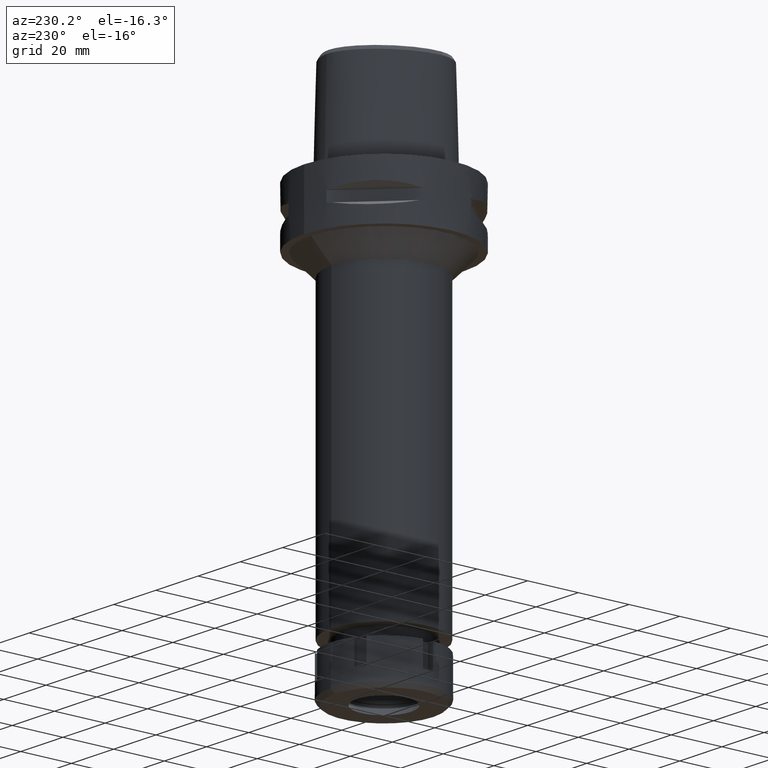
[diagram: clean part render]
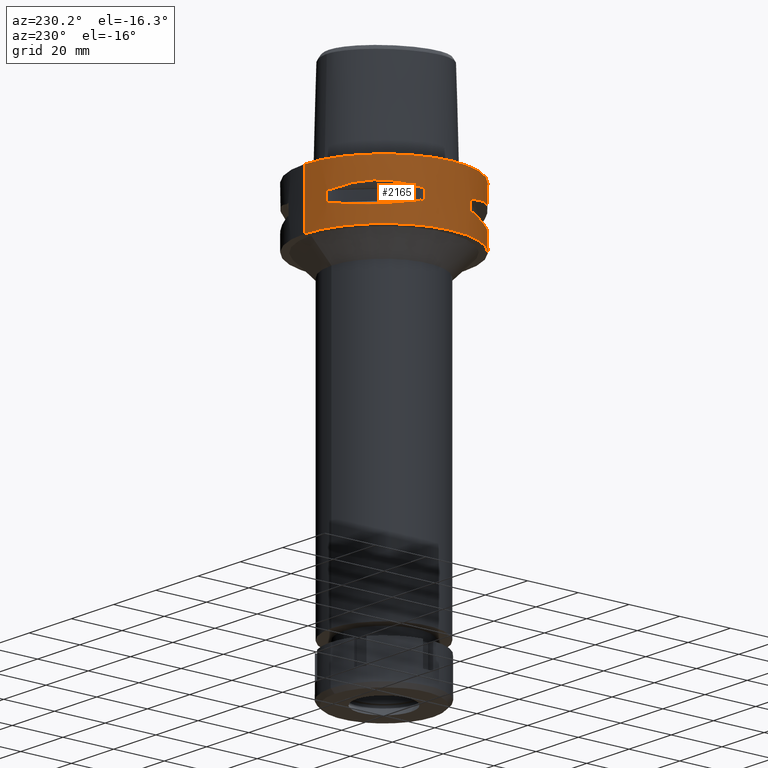
[diagram: same view with one face highlighted and labeled with its STEP entity id]
A machine part, auxiliary view. The second image highlights one B-rep face of the part: STEP entity #2165.
In plain terms, the highlighted cylindrical surface (partial cylindrical patch) has radius 31.5 mm, axis along (0, 0, -1).
Its self-contained STEP definition (entity closure, byte-faithful):
#11 = CARTESIAN_POINT ( 'NONE',  ( 0.0000000000000000000, 1.320781572880000066E-14, -22.00000000000000000 ) ) ;
#15 = DIRECTION ( 'NONE',  ( 0.0000000000000000000, 0.0000000000000000000, -1.000000000000000000 ) ) ;
#63 = EDGE_CURVE ( 'NONE', #4992, #2231, #303, .T. ) ;
#75 = CARTESIAN_POINT ( 'NONE',  ( -14.84422749186513713, 27.88214534477230444, -8.906206096533262340 ) ) ;
#105 = CARTESIAN_POINT ( 'NONE',  ( 0.0000000000000000000, 1.320781572880000066E-14, 7.849999999999999645 ) ) ;
#154 = DIRECTION ( 'NONE',  ( 0.0000000000000000000, 0.0000000000000000000, 1.000000000000000000 ) ) ;
#197 = AXIS2_PLACEMENT_3D ( 'NONE', #2207, #4275, #3935 ) ;
#200 = CIRCLE ( 'NONE', #5432, 31.50000000000000711 ) ;
#219 = LINE ( 'NONE', #3627, #4082 ) ;
#256 = ORIENTED_EDGE ( 'NONE', *, *, #737, .F. ) ;
#303 = LINE ( 'NONE', #2022, #4029 ) ;
#346 = DIRECTION ( 'NONE',  ( 0.0000000000000000000, 0.0000000000000000000, 1.000000000000000000 ) ) ;
#395 = CARTESIAN_POINT ( 'NONE',  ( -30.19251670572000279, -8.981198972017999438, -14.05000000000000071 ) ) ;
#446 = CARTESIAN_POINT ( 'NONE',  ( -12.70097436174568983, -28.92472615208535558, -9.353533115229671679 ) ) ;
#452 = CARTESIAN_POINT ( 'NONE',  ( -26.84474411198783628, -16.48208282228858224, -15.34094883777952667 ) ) ;
#481 = CARTESIAN_POINT ( 'NONE',  ( -14.89252659053665440, -27.86285265927818600, -15.10765629750852135 ) ) ;
#514 = CARTESIAN_POINT ( 'NONE',  ( -8.981198972017999438, 30.19251670572000279, -14.05000000000000071 ) ) ;
#553 = CARTESIAN_POINT ( 'NONE',  ( -10.44775724750000023, -29.71690375017999841, -9.949999999998999201 ) ) ;
#601 = DIRECTION ( 'NONE',  ( -0.9433937698468619626, 0.3316748332540863653, 0.0000000000000000000 ) ) ;
#609 = CARTESIAN_POINT ( 'NONE',  ( -10.44775724750000023, 29.71690375017999841, -14.05000000000000071 ) ) ;
#674 = AXIS2_PLACEMENT_3D ( 'NONE', #5036, #346, #3356 ) ;
#737 = EDGE_CURVE ( 'NONE', #3076, #748, #1529, .T. ) ;
#748 = VERTEX_POINT ( 'NONE', #1264 ) ;
#761 = DIRECTION ( 'NONE',  ( -0.9584925938322735872, 0.2851174276831918153, 0.0000000000000000000 ) ) ;
#786 = AXIS2_PLACEMENT_3D ( 'NONE', #2012, #1594, #3338 ) ;
#789 = CIRCLE ( 'NONE', #2389, 31.50000000000001776 ) ;
#832 = CARTESIAN_POINT ( 'NONE',  ( -10.44775724750000023, -29.71690375017999841, -14.05000000000000071 ) ) ;
#848 = VERTEX_POINT ( 'NONE', #920 ) ;
#859 = CARTESIAN_POINT ( 'NONE',  ( -12.73197616784617381, -28.91382665370159799, -14.65467361752943809 ) ) ;
#877 = CARTESIAN_POINT ( 'NONE',  ( -18.86897208073744991, 25.32725744467937545, -15.69588095933747240 ) ) ;
#878 = CARTESIAN_POINT ( 'NONE',  ( -20.64154884321404637, -23.90617837153842729, -8.160613588488567771 ) ) ;
#880 = ORIENTED_EDGE ( 'NONE', *, *, #1472, .F. ) ;
#883 = CARTESIAN_POINT ( 'NONE',  ( -28.92472615202281716, 12.70097436192362572, -9.353533115182571578 ) ) ;
#892 = LINE ( 'NONE', #2614, #4280 ) ;
#898 = CARTESIAN_POINT ( 'NONE',  ( -26.52527364208584615, 16.98999780422065342, -15.41788098766309467 ) ) ;
#906 = CARTESIAN_POINT ( 'NONE',  ( -17.14106442934810204, -26.42800887047570058, -15.43984550238532982 ) ) ;
#920 = CARTESIAN_POINT ( 'NONE',  ( -8.981198972019999616, 30.19251670572000279, -9.950000000000001066 ) ) ;
#972 = ORIENTED_EDGE ( 'NONE', *, *, #2183, .T. ) ;
#973 = ORIENTED_EDGE ( 'NONE', *, *, #3307, .T. ) ;
#1019 = VECTOR ( 'NONE', #154, 1000.000000000000000 ) ;
#1075 = DIRECTION ( 'NONE',  ( 0.0000000000000000000, 0.0000000000000000000, 1.000000000000000000 ) ) ;
#1092 = CARTESIAN_POINT ( 'NONE',  ( -16.03138450077636534, 27.11872488589498786, -15.26880420107476333 ) ) ;
#1119 = ORIENTED_EDGE ( 'NONE', *, *, #2102, .T. ) ;
#1179 = CARTESIAN_POINT ( 'NONE',  ( -10.44775724750000023, 29.71690375017999841, -14.05000000000000071 ) ) ;
#1200 = ORIENTED_EDGE ( 'NONE', *, *, #2672, .T. ) ;
#1253 = CARTESIAN_POINT ( 'NONE',  ( -8.981198972019999616, -30.19251670572000279, -14.05000000000000071 ) ) ;
#1264 = CARTESIAN_POINT ( 'NONE',  ( -29.71690375017999841, 10.44775724750000023, -14.05000000000000071 ) ) ;
#1285 = DIRECTION ( 'NONE',  ( 0.0000000000000000000, 0.0000000000000000000, -1.000000000000000000 ) ) ;
#1294 = CARTESIAN_POINT ( 'NONE',  ( -29.71690375017999841, 10.44775724750000023, -9.949999999998999201 ) ) ;
#1314 = CARTESIAN_POINT ( 'NONE',  ( 0.0000000000000000000, 1.320781572880000066E-14, -2.131628207279999844E-14 ) ) ;
#1320 = CARTESIAN_POINT ( 'NONE',  ( -25.37272068390332436, 18.81462633043442878, -8.309724968561161162 ) ) ;
#1334 = CARTESIAN_POINT ( 'NONE',  ( -27.86285265926284893, 14.89252659058025685, -15.10765629752004813 ) ) ;
#1336 = CARTESIAN_POINT ( 'NONE',  ( -25.37277178159835955, -18.81455742174598456, -8.309746333092061121 ) ) ;
#1342 = CARTESIAN_POINT ( 'NONE',  ( -18.59229662065495958, -25.43927894891979946, -15.62866126334684580 ) ) ;
#1364 = EDGE_LOOP ( 'NONE', ( #972, #2076, #4658, #256, #1119, #2654, #973, #5260 ) ) ;
#1365 = ORIENTED_EDGE ( 'NONE', *, *, #63, .T. ) ;
#1370 = CARTESIAN_POINT ( 'NONE',  ( -26.58330558444411906, -16.89910283486596754, -15.40446471307235754 ) ) ;
#1446 = CARTESIAN_POINT ( 'NONE',  ( -10.44775724750000023, 29.71690375017999841, -9.949999999998999201 ) ) ;
#1472 = EDGE_CURVE ( 'NONE', #4311, #3036, #2058, .T. ) ;
#1493 = DIRECTION ( 'NONE',  ( 0.0000000000000000000, 0.0000000000000000000, -1.000000000000000000 ) ) ;
#1529 = B_SPLINE_CURVE_WITH_KNOTS ( 'NONE', 3,
 ( #1179, #4546, #2919, #4971, #1092, #2828, #1969, #4716, #4328, #3876, #877, #5512, #3512, #4298, #2621, #4747, #4375, #2648, #1766, #898, #5213, #1334, #2140, #3032 ),
 .UNSPECIFIED., .F., .F.,
 ( 4, 1, 1, 1, 1, 1, 2, 2, 2, 1, 1, 1, 1, 1, 2, 2, 4 ),
 ( 0.0000000000000000000, 0.1249999999999950040, 0.1874999999999924505, 0.2187499999999911737, 0.2343749999999902855, 0.2421874999999899802, 0.2460937499999900080, 0.2499999999999900080, 0.4999999999999917843, 0.6249999999999925615, 0.6874999999999925615, 0.7187499999999924505, 0.7343749999999926725, 0.7421874999999927836, 0.7460937499999928946, 0.7499999999999931166, 1.000000000000000000 ),
 .UNSPECIFIED. ) ;
#1559 = AXIS2_PLACEMENT_3D ( 'NONE', #105, #1493, #4890 ) ;
#1594 = DIRECTION ( 'NONE',  ( 0.0000000000000000000, 0.0000000000000000000, 1.000000000000000000 ) ) ;
#1599 = EDGE_CURVE ( 'NONE', #848, #4540, #5157, .T. ) ;
#1659 = DIRECTION ( 'NONE',  ( -0.9433937698468619626, -0.3316748332540863653, 0.0000000000000000000 ) ) ;
#1695 = CARTESIAN_POINT ( 'NONE',  ( -17.76952662672209371, -26.01217882834868433, -15.52665221626257264 ) ) ;
#1707 = DIRECTION ( 'NONE',  ( 0.0000000000000000000, 1.000000000000000000, 0.0000000000000000000 ) ) ;
#1713 = VERTEX_POINT ( 'NONE', #3004 ) ;
#1716 = EDGE_CURVE ( 'NONE', #3921, #3797, #4705, .T. ) ;
#1736 = CIRCLE ( 'NONE', #197, 31.50000000000000711 ) ;
#1744 = CARTESIAN_POINT ( 'NONE',  ( -26.60451452154760332, -16.86571563436626064, -15.39949295786003347 ) ) ;
#1766 = CARTESIAN_POINT ( 'NONE',  ( -26.48642424310458665, 17.05047092244234008, -15.42670883407647509 ) ) ;
#1797 = CARTESIAN_POINT ( 'NONE',  ( -26.64486562695783789, -16.80193241490531975, -15.38992683735687272 ) ) ;
#1911 = VECTOR ( 'NONE', #15, 1000.000000000000000 ) ;
#1921 = EDGE_CURVE ( 'NONE', #1713, #4941, #4853, .T. ) ;
#1969 = CARTESIAN_POINT ( 'NONE',  ( -16.70616724745637072, 26.70521063584585164, -15.37546661817639126 ) ) ;
#1973 = VERTEX_POINT ( 'NONE', #1446 ) ;
#1995 = CARTESIAN_POINT ( 'NONE',  ( -8.981198972017999438, -30.19251670572000279, -14.05000000000000071 ) ) ;
#2012 = CARTESIAN_POINT ( 'NONE',  ( 0.0000000000000000000, 1.320781572880000066E-14, -9.950000000000001066 ) ) ;
#2022 = CARTESIAN_POINT ( 'NONE',  ( 0.0000000000000000000, 31.50000000000000000, -1.125025998286999896E-14 ) ) ;
#2032 = EDGE_LOOP ( 'NONE', ( #5159, #880, #2107, #5564, #4956, #4791, #3711, #3563 ) ) ;
#2058 = LINE ( 'NONE', #1995, #2730 ) ;
#2076 = ORIENTED_EDGE ( 'NONE', *, *, #1921, .F. ) ;
#2081 = EDGE_CURVE ( 'NONE', #5368, #5430, #4315, .T. ) ;
#2102 = EDGE_CURVE ( 'NONE', #3076, #4540, #1736, .T. ) ;
#2107 = ORIENTED_EDGE ( 'NONE', *, *, #4872, .T. ) ;
#2129 = CARTESIAN_POINT ( 'NONE',  ( 0.0000000000000000000, 1.320781572880000066E-14, -9.950000000000001066 ) ) ;
#2140 = CARTESIAN_POINT ( 'NONE',  ( -28.91382665368626093, 12.73197616788979047, -14.65467361754097197 ) ) ;
#2141 = CARTESIAN_POINT ( 'NONE',  ( -8.981198972017999438, 30.19251670572000279, -9.950000000000001066 ) ) ;
#2165 = ADVANCED_FACE ( 'NONE', ( #4922, #4413, #2744 ), #3654, .T. ) ;
#2183 = EDGE_CURVE ( 'NONE', #5069, #4941, #5078, .T. ) ;
#2207 = CARTESIAN_POINT ( 'NONE',  ( 0.0000000000000000000, 1.320781572880000066E-14, -14.05000000000000071 ) ) ;
#2231 = VERTEX_POINT ( 'NONE', #3575 ) ;
#2234 = CARTESIAN_POINT ( 'NONE',  ( -10.44775724750000023, 29.71690375017999841, -9.949999999998999201 ) ) ;
#2244 = EDGE_CURVE ( 'NONE', #2328, #3410, #219, .T. ) ;
#2321 = CARTESIAN_POINT ( 'NONE',  ( -29.71690375017999841, -10.44775724750000023, -14.05000000000000071 ) ) ;
#2328 = VERTEX_POINT ( 'NONE', #4801 ) ;
#2389 = AXIS2_PLACEMENT_3D ( 'NONE', #2129, #3363, #3866 ) ;
#2463 = CARTESIAN_POINT ( 'NONE',  ( 0.0000000000000000000, 1.320781572880000066E-14, -14.05000000000000071 ) ) ;
#2522 = DIRECTION ( 'NONE',  ( 0.0000000000000000000, 0.0000000000000000000, -1.000000000000000000 ) ) ;
#2546 = CARTESIAN_POINT ( 'NONE',  ( -21.46242677078364025, -23.08532645888299939, -15.83938991065501867 ) ) ;
#2557 = EDGE_CURVE ( 'NONE', #3914, #4992, #4542, .T. ) ;
#2558 = CIRCLE ( 'NONE', #3919, 31.50000000000000000 ) ;
#2598 = CARTESIAN_POINT ( 'NONE',  ( -14.84430321566181910, -27.88210502990660444, -8.906184732002365934 ) ) ;
#2603 = CARTESIAN_POINT ( 'NONE',  ( -23.90617837140510105, 20.64154884334740458, -8.160613588441464117 ) ) ;
#2614 = CARTESIAN_POINT ( 'NONE',  ( 0.0000000000000000000, -31.50000000000000000, -1.125025998286999896E-14 ) ) ;
#2621 = CARTESIAN_POINT ( 'NONE',  ( -25.43927894891607622, 18.59229662064853983, -15.62866126334269623 ) ) ;
#2628 = CARTESIAN_POINT ( 'NONE',  ( -20.64154884334740103, 23.90617837140510460, -8.160627831333236770 ) ) ;
#2646 = DIRECTION ( 'NONE',  ( 0.0000000000000000000, 0.0000000000000000000, 1.000000000000000000 ) ) ;
#2648 = CARTESIAN_POINT ( 'NONE',  ( -26.42800887047508240, 17.14106442934706820, -15.43984550238465836 ) ) ;
#2654 = ORIENTED_EDGE ( 'NONE', *, *, #1599, .F. ) ;
#2662 = CARTESIAN_POINT ( 'NONE',  ( -17.05047092244293694, -26.48642424310493837, -15.42670883407686588 ) ) ;
#2667 = CARTESIAN_POINT ( 'NONE',  ( -29.71690375017999841, -10.44775724750000023, -9.949999999998999201 ) ) ;
#2672 = EDGE_CURVE ( 'NONE', #2231, #3968, #2558, .T. ) ;
#2703 = EDGE_CURVE ( 'NONE', #5368, #3410, #200, .T. ) ;
#2730 = VECTOR ( 'NONE', #5409, 1000.000000000000000 ) ;
#2744 = FACE_BOUND ( 'NONE', #2032, .T. ) ;
#2828 = CARTESIAN_POINT ( 'NONE',  ( -16.48208282228564769, 26.84474411198887012, -15.34094883777873619 ) ) ;
#2912 = EDGE_CURVE ( 'NONE', #3914, #3968, #892, .T. ) ;
#2919 = CARTESIAN_POINT ( 'NONE',  ( -13.25636937902232404, 28.62019653469382163, -14.74888225540932751 ) ) ;
#3004 = CARTESIAN_POINT ( 'NONE',  ( -30.19251670572000279, 8.981198972019999616, -14.05000000000000071 ) ) ;
#3009 = CARTESIAN_POINT ( 'NONE',  ( -25.32725744469575702, -18.86897208070564247, -15.69588095933118943 ) ) ;
#3022 = CARTESIAN_POINT ( 'NONE',  ( -8.981198972017999438, -30.19251670572000279, -9.950000000000001066 ) ) ;
#3032 = CARTESIAN_POINT ( 'NONE',  ( -29.71690375017999841, 10.44775724750000023, -14.05000000000000071 ) ) ;
#3036 = VERTEX_POINT ( 'NONE', #3022 ) ;
#3066 = CARTESIAN_POINT ( 'NONE',  ( -28.62019653468943048, -13.25636937903484203, -14.74888225541266884 ) ) ;
#3076 = VERTEX_POINT ( 'NONE', #609 ) ;
#3085 = CARTESIAN_POINT ( 'NONE',  ( -23.90617837153842729, -20.64154884321405703, -8.160627831286134892 ) ) ;
#3115 = CIRCLE ( 'NONE', #674, 31.50000000000001776 ) ;
#3215 = CIRCLE ( 'NONE', #786, 31.50000000000000711 ) ;
#3220 = AXIS2_PLACEMENT_3D ( 'NONE', #2463, #2522, #5092 ) ;
#3307 = EDGE_CURVE ( 'NONE', #848, #1973, #3115, .T. ) ;
#3336 = CARTESIAN_POINT ( 'NONE',  ( 0.0000000000000000000, 31.50000000000000000, -2.131628207279999844E-14 ) ) ;
#3338 = DIRECTION ( 'NONE',  ( -0.3316748332540863653, -0.9433937698468619626, 0.0000000000000000000 ) ) ;
#3356 = DIRECTION ( 'NONE',  ( -0.2851174276831918153, 0.9584925938322735872, 0.0000000000000000000 ) ) ;
#3359 = DIRECTION ( 'NONE',  ( 0.0000000000000000000, 0.0000000000000000000, -1.000000000000000000 ) ) ;
#3363 = DIRECTION ( 'NONE',  ( 0.0000000000000000000, 0.0000000000000000000, 1.000000000000000000 ) ) ;
#3402 = DIRECTION ( 'NONE',  ( 0.0000000000000000000, 0.0000000000000000000, -1.000000000000000000 ) ) ;
#3410 = VERTEX_POINT ( 'NONE', #395 ) ;
#3417 = CARTESIAN_POINT ( 'NONE',  ( 0.0000000000000000000, 1.320781572880000066E-14, -14.05000000000000071 ) ) ;
#3438 = CARTESIAN_POINT ( 'NONE',  ( -30.19251670572000279, 8.981198972017999438, -9.950000000000001066 ) ) ;
#3441 = EDGE_LOOP ( 'NONE', ( #1200, #3929, #4211, #1365 ) ) ;
#3444 = EDGE_CURVE ( 'NONE', #1973, #5069, #4787, .T. ) ;
#3451 = CARTESIAN_POINT ( 'NONE',  ( 0.0000000000000000000, 1.320781572880000066E-14, -14.05000000000000071 ) ) ;
#3492 = CARTESIAN_POINT ( 'NONE',  ( -23.89673728055121416, -20.65093790435243193, -15.83935804901394739 ) ) ;
#3512 = CARTESIAN_POINT ( 'NONE',  ( -23.08532645888017854, 21.46242677077873751, -15.83938991065184076 ) ) ;
#3513 = CARTESIAN_POINT ( 'NONE',  ( -29.71690375017999841, -10.44775724750000023, -9.949999999998999201 ) ) ;
#3563 = ORIENTED_EDGE ( 'NONE', *, *, #1716, .T. ) ;
#3575 = CARTESIAN_POINT ( 'NONE',  ( 0.0000000000000000000, 31.50000000000000000, -22.00000000000000000 ) ) ;
#3627 = CARTESIAN_POINT ( 'NONE',  ( -30.19251670572000279, -8.981198972017999438, -9.950000000000001066 ) ) ;
#3654 = CYLINDRICAL_SURFACE ( 'NONE', #1559, 31.50000000000000000 ) ;
#3711 = ORIENTED_EDGE ( 'NONE', *, *, #4415, .T. ) ;
#3744 = AXIS2_PLACEMENT_3D ( 'NONE', #1314, #3402, #4774 ) ;
#3797 = VERTEX_POINT ( 'NONE', #4857 ) ;
#3866 = DIRECTION ( 'NONE',  ( -0.9584925938322735872, -0.2851174276831918153, 0.0000000000000000000 ) ) ;
#3876 = CARTESIAN_POINT ( 'NONE',  ( -16.89910283486545950, 26.58330558444438907, -15.40446471307224030 ) ) ;
#3883 = CARTESIAN_POINT ( 'NONE',  ( -27.64634172018421410, -15.11986997309601577, -15.11207862403482238 ) ) ;
#3892 = DIRECTION ( 'NONE',  ( 0.0000000000000000000, 0.0000000000000000000, -1.000000000000000000 ) ) ;
#3914 = VERTEX_POINT ( 'NONE', #4363 ) ;
#3919 = AXIS2_PLACEMENT_3D ( 'NONE', #11, #2646, #1707 ) ;
#3921 = VERTEX_POINT ( 'NONE', #2667 ) ;
#3929 = ORIENTED_EDGE ( 'NONE', *, *, #2912, .F. ) ;
#3935 = DIRECTION ( 'NONE',  ( -0.3316748332540863653, 0.9433937698468619626, 0.0000000000000000000 ) ) ;
#3968 = VERTEX_POINT ( 'NONE', #5247 ) ;
#3984 = DIRECTION ( 'NONE',  ( 0.0000000000000000000, 0.0000000000000000000, -1.000000000000000000 ) ) ;
#4016 = AXIS2_PLACEMENT_3D ( 'NONE', #3417, #3359, #761 ) ;
#4029 = VECTOR ( 'NONE', #5461, 1000.000000000000000 ) ;
#4059 = CARTESIAN_POINT ( 'NONE',  ( -30.19251670572000279, 8.981198972017999438, -14.05000000000000071 ) ) ;
#4082 = VECTOR ( 'NONE', #3984, 1000.000000000000000 ) ;
#4106 = CIRCLE ( 'NONE', #4016, 31.50000000000001776 ) ;
#4118 = EDGE_CURVE ( 'NONE', #3797, #3036, #3215, .T. ) ;
#4198 = CARTESIAN_POINT ( 'NONE',  ( -29.71690375017999841, 10.44775724750000023, -9.949999999998999201 ) ) ;
#4211 = ORIENTED_EDGE ( 'NONE', *, *, #2557, .T. ) ;
#4275 = DIRECTION ( 'NONE',  ( 0.0000000000000000000, 0.0000000000000000000, -1.000000000000000000 ) ) ;
#4280 = VECTOR ( 'NONE', #3892, 1000.000000000000000 ) ;
#4298 = CARTESIAN_POINT ( 'NONE',  ( -24.23018836745279714, 20.18579225685798306, -15.78559396978850415 ) ) ;
#4300 = CARTESIAN_POINT ( 'NONE',  ( -28.92474506841556092, -12.70092055739798376, -9.353547358203167406 ) ) ;
#4311 = VERTEX_POINT ( 'NONE', #1253 ) ;
#4315 = B_SPLINE_CURVE_WITH_KNOTS ( 'NONE', 3,
 ( #4725, #5550, #3066, #3883, #4336, #452, #5243, #1797, #1744, #1370, #3009, #3492, #2546, #4782, #1342, #1695, #5220, #906, #2662, #4359, #4699, #481, #859, #832 ),
 .UNSPECIFIED., .F., .F.,
 ( 4, 1, 1, 1, 1, 1, 2, 2, 2, 1, 1, 1, 1, 1, 2, 2, 4 ),
 ( 0.0000000000000000000, 0.1250000000000055511, 0.1875000000000083267, 0.2187500000000097977, 0.2343750000000106304, 0.2421875000000108247, 0.2460937500000108524, 0.2500000000000108802, 0.5000000000000087708, 0.6250000000000075495, 0.6875000000000071054, 0.7187500000000067724, 0.7343750000000066613, 0.7421875000000065503, 0.7460937500000062172, 0.7500000000000059952, 1.000000000000000000 ),
 .UNSPECIFIED. ) ;
#4328 = CARTESIAN_POINT ( 'NONE',  ( -16.86571563436579169, 26.60451452154777030, -15.39949295785988426 ) ) ;
#4336 = CARTESIAN_POINT ( 'NONE',  ( -27.11872488589304453, -16.03138450078185429, -15.26880420107623237 ) ) ;
#4359 = CARTESIAN_POINT ( 'NONE',  ( -16.98999780422095540, -26.52527364208602734, -15.41788098766330783 ) ) ;
#4363 = CARTESIAN_POINT ( 'NONE',  ( 0.0000000000000000000, -31.50000000000000000, -2.131628207279999844E-14 ) ) ;
#4375 = CARTESIAN_POINT ( 'NONE',  ( -26.29071741523646111, 17.35163608579689409, -15.46976201925398087 ) ) ;
#4413 = FACE_BOUND ( 'NONE', #1364, .T. ) ;
#4415 = EDGE_CURVE ( 'NONE', #2328, #3921, #789, .T. ) ;
#4454 = AXIS2_PLACEMENT_3D ( 'NONE', #5361, #1075, #601 ) ;
#4471 = CARTESIAN_POINT ( 'NONE',  ( -10.44775724750000023, -29.71690375017999841, -14.05000000000000071 ) ) ;
#4540 = VERTEX_POINT ( 'NONE', #514 ) ;
#4542 = CIRCLE ( 'NONE', #3744, 31.50000000000000000 ) ;
#4546 = CARTESIAN_POINT ( 'NONE',  ( -11.58970337493613378, 29.31542262584994418, -14.35229357166721265 ) ) ;
#4658 = ORIENTED_EDGE ( 'NONE', *, *, #4953, .T. ) ;
#4699 = CARTESIAN_POINT ( 'NONE',  ( -16.96123479564984748, -26.54368690921626950, -15.41365572341332424 ) ) ;
#4705 = B_SPLINE_CURVE_WITH_KNOTS ( 'NONE', 3,
 ( #3513, #4300, #5214, #1336, #3085, #878, #5566, #2598, #446, #553 ),
 .UNSPECIFIED., .F., .F.,
 ( 4, 2, 2, 2, 4 ),
 ( 0.0000000000000000000, 0.2500000000000000000, 0.5000000000000000000, 0.7500000000000000000, 1.000000000000000000 ),
 .UNSPECIFIED. ) ;
#4716 = CARTESIAN_POINT ( 'NONE',  ( -16.80193241490443157, 26.64486562695815053, -15.38992683735661515 ) ) ;
#4725 = CARTESIAN_POINT ( 'NONE',  ( -29.71690375017999841, -10.44775724750000023, -14.05000000000000071 ) ) ;
#4747 = CARTESIAN_POINT ( 'NONE',  ( -26.01217882834653139, 17.76952662671834915, -15.52665221626015501 ) ) ;
#4774 = DIRECTION ( 'NONE',  ( 0.0000000000000000000, -1.000000000000000000, 0.0000000000000000000 ) ) ;
#4782 = CARTESIAN_POINT ( 'NONE',  ( -20.18579225686653444, -24.23018836745773541, -15.78559396979401974 ) ) ;
#4787 = B_SPLINE_CURVE_WITH_KNOTS ( 'NONE', 3,
 ( #2234, #5194, #75, #5138, #2628, #2603, #1320, #4803, #883, #1294 ),
 .UNSPECIFIED., .F., .F.,
 ( 4, 2, 2, 2, 4 ),
 ( 0.0000000000000000000, 0.2500000000000000000, 0.5000000000000000000, 0.7500000000000000000, 1.000000000000000000 ),
 .UNSPECIFIED. ) ;
#4791 = ORIENTED_EDGE ( 'NONE', *, *, #2244, .F. ) ;
#4801 = CARTESIAN_POINT ( 'NONE',  ( -30.19251670572000279, -8.981198972019999616, -9.950000000000001066 ) ) ;
#4803 = CARTESIAN_POINT ( 'NONE',  ( -27.88210502977331373, 14.84430321591221613, -8.906184731931714893 ) ) ;
#4853 = LINE ( 'NONE', #4059, #1019 ) ;
#4857 = CARTESIAN_POINT ( 'NONE',  ( -10.44775724750000023, -29.71690375017999841, -9.949999999998999201 ) ) ;
#4872 = EDGE_CURVE ( 'NONE', #4311, #5430, #4921, .T. ) ;
#4890 = DIRECTION ( 'NONE',  ( 0.0000000000000000000, -1.000000000000000000, 0.0000000000000000000 ) ) ;
#4921 = CIRCLE ( 'NONE', #3220, 31.50000000000001776 ) ;
#4922 = FACE_OUTER_BOUND ( 'NONE', #3441, .T. ) ;
#4941 = VERTEX_POINT ( 'NONE', #3438 ) ;
#4953 = EDGE_CURVE ( 'NONE', #1713, #748, #4106, .T. ) ;
#4956 = ORIENTED_EDGE ( 'NONE', *, *, #2703, .T. ) ;
#4971 = CARTESIAN_POINT ( 'NONE',  ( -15.11986997308662595, 27.64634172018752523, -15.11207862403231239 ) ) ;
#4992 = VERTEX_POINT ( 'NONE', #3336 ) ;
#5036 = CARTESIAN_POINT ( 'NONE',  ( 0.0000000000000000000, 1.320781572880000066E-14, -9.950000000000001066 ) ) ;
#5069 = VERTEX_POINT ( 'NONE', #4198 ) ;
#5078 = CIRCLE ( 'NONE', #4454, 31.50000000000000711 ) ;
#5092 = DIRECTION ( 'NONE',  ( -0.2851174276831918153, -0.9584925938322735872, 0.0000000000000000000 ) ) ;
#5138 = CARTESIAN_POINT ( 'NONE',  ( -18.81455742151814192, 25.37277178176733372, -8.309746333162712162 ) ) ;
#5157 = LINE ( 'NONE', #2141, #1911 ) ;
#5159 = ORIENTED_EDGE ( 'NONE', *, *, #4118, .T. ) ;
#5194 = CARTESIAN_POINT ( 'NONE',  ( -12.70092055722009761, 28.92474506847810645, -9.353547358250267507 ) ) ;
#5213 = CARTESIAN_POINT ( 'NONE',  ( -26.54368690921649687, 16.96123479564916892, -15.41365572341313239 ) ) ;
#5214 = CARTESIAN_POINT ( 'NONE',  ( -27.88214534463898175, -14.84422749211551640, -8.906206096462613075 ) ) ;
#5220 = CARTESIAN_POINT ( 'NONE',  ( -17.35163608579889072, -26.29071741523761929, -15.46976201925527761 ) ) ;
#5243 = CARTESIAN_POINT ( 'NONE',  ( -26.70521063584532229, -16.70616724745790549, -15.37546661817682292 ) ) ;
#5247 = CARTESIAN_POINT ( 'NONE',  ( 0.0000000000000000000, -31.50000000000000000, -22.00000000000000000 ) ) ;
#5260 = ORIENTED_EDGE ( 'NONE', *, *, #3444, .T. ) ;
#5361 = CARTESIAN_POINT ( 'NONE',  ( 0.0000000000000000000, 1.320781572880000066E-14, -9.950000000000001066 ) ) ;
#5368 = VERTEX_POINT ( 'NONE', #2321 ) ;
#5409 = DIRECTION ( 'NONE',  ( 0.0000000000000000000, 0.0000000000000000000, 1.000000000000000000 ) ) ;
#5430 = VERTEX_POINT ( 'NONE', #4471 ) ;
#5432 = AXIS2_PLACEMENT_3D ( 'NONE', #3451, #1285, #1659 ) ;
#5461 = DIRECTION ( 'NONE',  ( 0.0000000000000000000, 0.0000000000000000000, -1.000000000000000000 ) ) ;
#5512 = CARTESIAN_POINT ( 'NONE',  ( -20.65093790435807364, 23.89673728056094859, -15.83935804902020550 ) ) ;
#5550 = CARTESIAN_POINT ( 'NONE',  ( -29.31542262584746794, -11.58970337494326941, -14.35229357166913999 ) ) ;
#5564 = ORIENTED_EDGE ( 'NONE', *, *, #2081, .F. ) ;
#5566 = CARTESIAN_POINT ( 'NONE',  ( -18.81462633020657194, -25.37272068407227010, -8.309724968631812203 ) ) ;